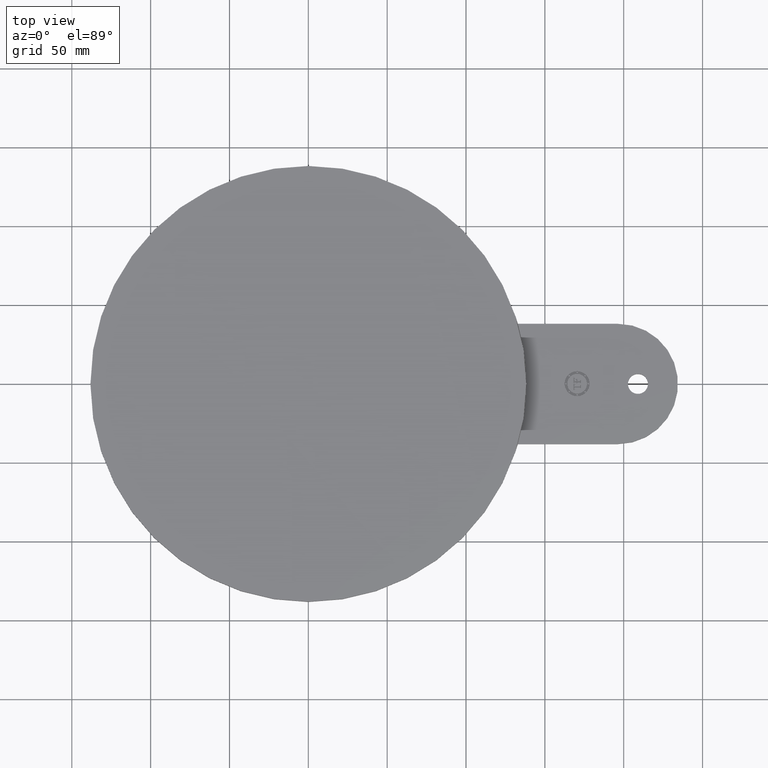
[diagram: clean part render]
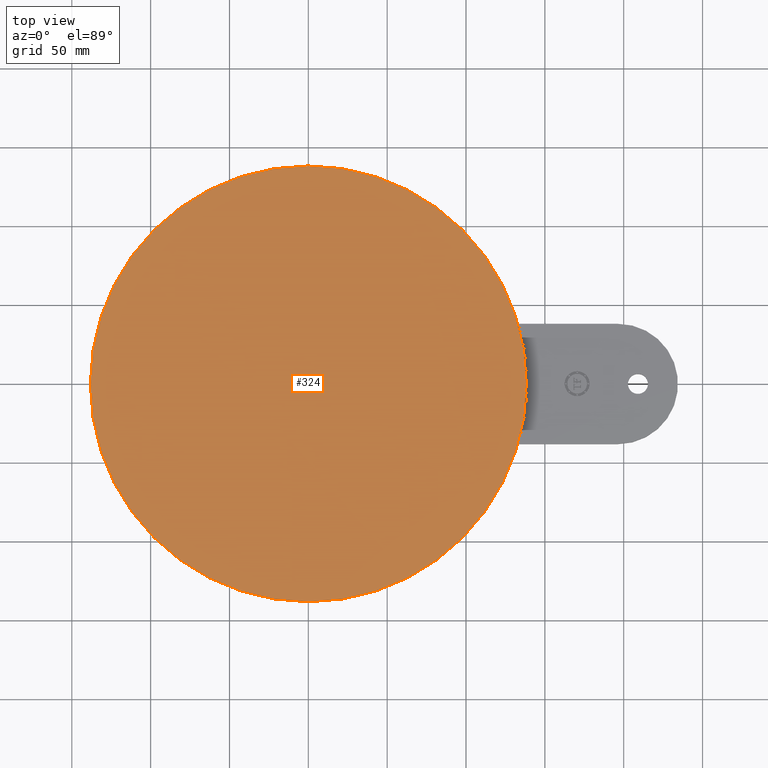
[diagram: same view with one face highlighted and labeled with its STEP entity id]
A machine part, top view. The second image highlights one B-rep face of the part: STEP entity #324.
In plain terms, the highlighted planar face has unit normal (0, 0, 1).
Its self-contained STEP definition (entity closure, byte-faithful):
#266=AXIS2_PLACEMENT_3D('Circle Axis2P3D',#264,#265,$) ;
#296=AXIS2_PLACEMENT_3D('Circle Axis2P3D',#294,#295,$) ;
#318=AXIS2_PLACEMENT_3D('Plane Axis2P3D',#315,#316,#317) ;
#261=CARTESIAN_POINT('Vertex',(-5.44000000002,6.66207858739E-016,0.250000000001)) ;
#264=CARTESIAN_POINT('Axis2P3D Location',(0.,0.,0.250000000001)) ;
#268=CARTESIAN_POINT('Vertex',(5.44000000002,0.,0.250000000001)) ;
#294=CARTESIAN_POINT('Axis2P3D Location',(0.,0.,0.250000000001)) ;
#315=CARTESIAN_POINT('Axis2P3D Location',(0.,0.,0.250000000001)) ;
#265=DIRECTION('Axis2P3D Direction',(0.,0.,0.0393700787402)) ;
#295=DIRECTION('Axis2P3D Direction',(0.,0.,0.0393700787402)) ;
#316=DIRECTION('Axis2P3D Direction',(0.,0.,0.0393700787402)) ;
#317=DIRECTION('Axis2P3D XDirection',(0.0393700787402,0.,0.)) ;
#321=ORIENTED_EDGE('',*,*,#270,.T.) ;
#322=ORIENTED_EDGE('',*,*,#298,.T.) ;
#324=ADVANCED_FACE('PartBody',(#323),#319,.T.) ;
#267=CIRCLE('generated circle',#266,5.44000000002) ;
#297=CIRCLE('generated circle',#296,5.44000000002) ;
#270=EDGE_CURVE('',#269,#262,#267,.T.) ;
#298=EDGE_CURVE('',#262,#269,#297,.T.) ;
#320=EDGE_LOOP('',(#321,#322)) ;
#323=FACE_OUTER_BOUND('',#320,.T.) ;
#319=PLANE('',#318) ;
#262=VERTEX_POINT('',#261) ;
#269=VERTEX_POINT('',#268) ;